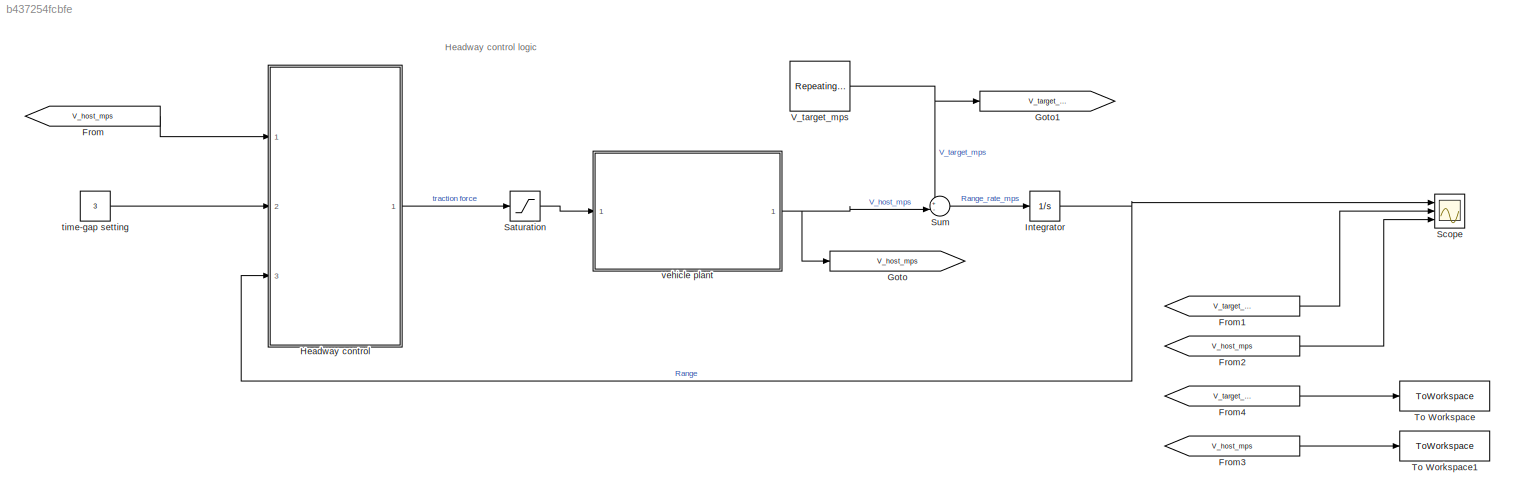
MODEL slx_b437254fcbfe
KIND model
CONFIG AbsTol = auto
CONFIG EnableMultiTasking = off
CONFIG FixedStep = auto
CONFIG MaxStep = auto
CONFIG MinStep = auto
CONFIG RelTol = 1e-3
CONFIG SampleTimeConstraint = Unconstrained
CONFIG SolverName = VariableStepAuto
CONFIG StartTime = 0.0
CONFIG StopTime = 500
BLOCK [From] From
  GotoTag = V_host_mps
BLOCK [From] From1
  GotoTag = V_target_mps
BLOCK [From] From2
  GotoTag = V_host_mps
BLOCK [From] From3
  GotoTag = V_host_mps
BLOCK [From] From4
  GotoTag = V_target_mps
BLOCK [Goto] Goto
  GotoTag = V_host_mps
BLOCK [Goto] Goto1
  GotoTag = V_target_mps
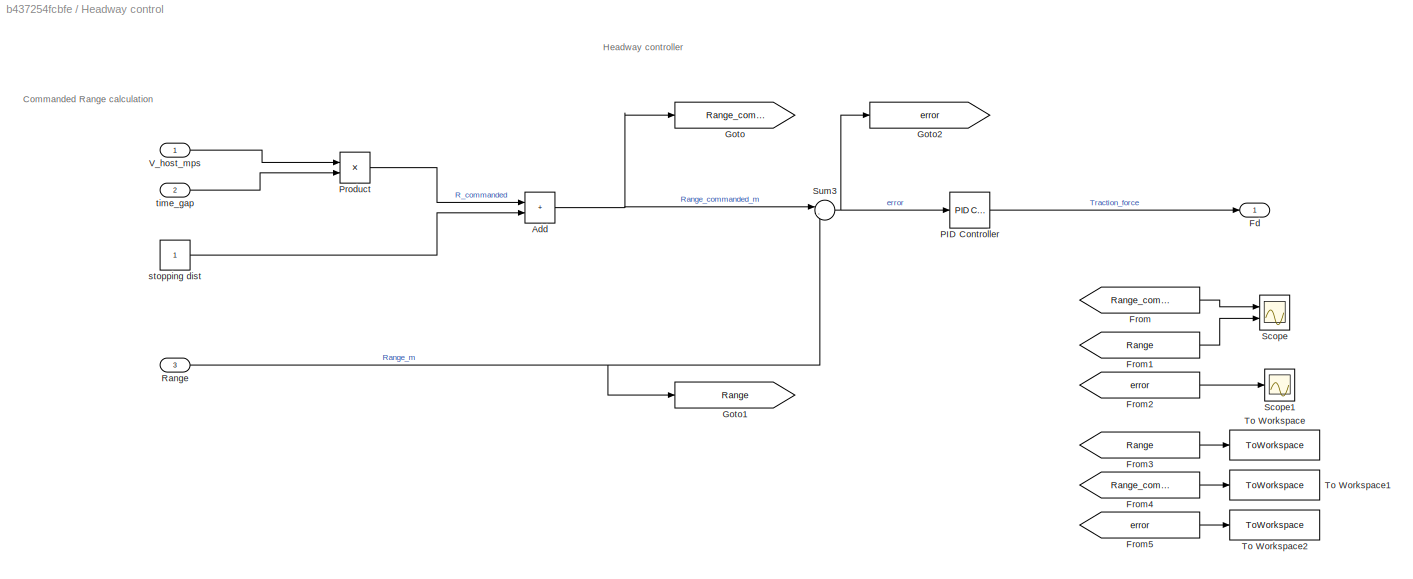
BLOCK [SubSystem] Headway control
  Ports = [3, 1]
  RequestExecContextInheritance = off
BLOCK [Sum] Headway control/Add
  IconShape = rectangular
  Ports = [2, 1]
BLOCK [Outport] Headway control/Fd
BLOCK [From] Headway control/From
  GotoTag = Range_commanded_m
BLOCK [From] Headway control/From1
  GotoTag = Range
BLOCK [From] Headway control/From2
  GotoTag = error
BLOCK [From] Headway control/From3
  GotoTag = Range
BLOCK [From] Headway control/From4
  GotoTag = Range_commanded_m
BLOCK [From] Headway control/From5
  GotoTag = error
BLOCK [Goto] Headway control/Goto
  GotoTag = Range_commanded_m
BLOCK [Goto] Headway control/Goto1
  GotoTag = Range
BLOCK [Goto] Headway control/Goto2
  GotoTag = error
BLOCK [Reference] Headway control/PID Controller  REF=pid_lib/PID Controller
  Ports = [1, 1]
  SourceBlock = pid_lib/PID Controller
  SourceProductBaseCode = SL
  SourceType = PID 1dof
BLOCK [Product] Headway control/Product
  Ports = [2, 1]
BLOCK [Inport] Headway control/Range
  Port = 3
BLOCK [Scope] Headway control/Scope
  Floating = off
  NumInputPorts = 2
  Ports = [2]
  ScopeSpecificationString = Simulink.scopes.TimeScopeBlockCfg('CurrentConfiguration', extmgr.ConfigurationSet(extmgr.Configuration('Core','General UI',true),extmgr.Configuration('Core','Source UI',true),extmgr.Configuration('Sources','WiredSimulink',true,'DataLoggingVariableName','ScopeData1'),extmgr.Configuration('Visuals','Time Domain',true,'SerializedDisplays',{struct('MinYLimReal','-13.22958','MaxYLimReal','119.06619','Y...<+1452ch>
BLOCK [Scope] Headway control/Scope1
  Floating = off
  NumInputPorts = 1
  Ports = [1]
  ScopeSpecificationString = Simulink.scopes.TimeScopeBlockCfg('CurrentConfiguration', extmgr.ConfigurationSet(extmgr.Configuration('Core','General UI',true),extmgr.Configuration('Core','Source UI',true),extmgr.Configuration('Sources','WiredSimulink',true,'DataLoggingVariableName','ScopeData1'),extmgr.Configuration('Visuals','Time Domain',true,'SerializedDisplays',{struct('MinYLimReal','-87.41267','MaxYLimReal','26.71407','YL...<+1403ch>
BLOCK [Sum] Headway control/Sum3
  Inputs = |-+
  Ports = [2, 1]
BLOCK [ToWorkspace] Headway control/To Workspace
  FixptAsFi = on
  MaxDataPoints = inf
  Ports = [1]
  SampleTime = -1
  VariableName = Range
BLOCK [ToWorkspace] Headway control/To Workspace1
  FixptAsFi = on
  MaxDataPoints = inf
  Ports = [1]
  SampleTime = -1
  VariableName = Range_commanded
BLOCK [ToWorkspace] Headway control/To Workspace2
  FixptAsFi = on
  MaxDataPoints = inf
  Ports = [1]
  SampleTime = -1
  VariableName = Headway_error
BLOCK [Inport] Headway control/V_host_mps
BLOCK [Constant] Headway control/stopping dist
BLOCK [Inport] Headway control/time_gap
  Port = 2
BLOCK [Integrator] Integrator
  Ports = [1, 1]
BLOCK [Saturate] Saturation
  LowerLimit = -1000
  UpperLimit = 1000
BLOCK [Scope] Scope
  Floating = off
  NumInputPorts = 3
  Ports = [3]
  ScopeSpecificationString = Simulink.scopes.TimeScopeBlockCfg('CurrentConfiguration', extmgr.ConfigurationSet(extmgr.Configuration('Core','General UI',true),extmgr.Configuration('Core','Source UI',true),extmgr.Configuration('Sources','WiredSimulink',true),extmgr.Configuration('Visuals','Time Domain',true,'SerializedDisplays',{struct('MinYLimReal','-13.22958','MaxYLimReal','119.06619','YLabelReal','','MinYLimMag','0.00000','M...<+2665ch>
BLOCK [Sum] Sum
  Inputs = +-|
  Ports = [2, 1]
BLOCK [ToWorkspace] To Workspace
  FixptAsFi = on
  MaxDataPoints = inf
  Ports = [1]
  SampleTime = -1
  VariableName = V_target_mps
BLOCK [ToWorkspace] To Workspace1
  FixptAsFi = on
  MaxDataPoints = inf
  Ports = [1]
  SampleTime = -1
  VariableName = V_host_mps
BLOCK [Reference] V_target_mps   REF=simulink/Sources/Repeating
Sequence
  Ports = [0, 1]
  SourceBlock = simulink/Sources/Repeating\nSequence
  SourceProductBaseCode = SL
  SourceType = Repeating table
BLOCK [Constant] time-gap setting
  Value = 3
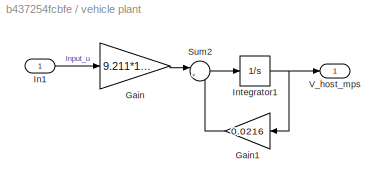
BLOCK [SubSystem] vehicle plant
  Ports = [1, 1]
  RequestExecContextInheritance = off
BLOCK [Gain] vehicle plant/Gain
  Gain = 9.211*1e-4
BLOCK [Gain] vehicle plant/Gain1
  Gain = 0.0216
BLOCK [Inport] vehicle plant/In1
BLOCK [Integrator] vehicle plant/Integrator1
  InitialCondition = 25
  Ports = [1, 1]
BLOCK [Sum] vehicle plant/Sum2
  Inputs = |+-
  Ports = [2, 1]
BLOCK [Outport] vehicle plant/V_host_mps
  VectorParamsAs1DForOutWhenUnconnected = off
ANNOTATION (root): Headway control logic
ANNOTATION Headway control: Headway controller
ANNOTATION Headway control: Commanded Range calculation
LINE From1:1 -> Scope:2
LINE From2:1 -> Scope:3
LINE From3:1 -> To Workspace1:1
LINE From4:1 -> To Workspace:1
LINE From:1 -> Headway control:1
NET Headway control/Add:1 -> Headway control/Goto:1, Headway control/Sum3:1
LINE Headway control/From1:1 -> Headway control/Scope:2
LINE Headway control/From2:1 -> Headway control/Scope1:1
LINE Headway control/From3:1 -> Headway control/To Workspace:1
LINE Headway control/From4:1 -> Headway control/To Workspace1:1
LINE Headway control/From5:1 -> Headway control/To Workspace2:1
LINE Headway control/From:1 -> Headway control/Scope:1
LINE Headway control/PID Controller:1 -> Headway control/Fd:1
LINE Headway control/Product:1 -> Headway control/Add:1
NET Headway control/Range:1 -> Headway control/Goto1:1, Headway control/Sum3:2
NET Headway control/Sum3:1 -> Headway control/Goto2:1, Headway control/PID Controller:1
LINE Headway control/V_host_mps:1 -> Headway control/Product:1
LINE Headway control/stopping dist:1 -> Headway control/Add:2
LINE Headway control/time_gap:1 -> Headway control/Product:2
LINE Headway control:1 -> Saturation:1
NET Integrator:1 -> Headway control:3, Scope:1
LINE Saturation:1 -> vehicle plant:1
LINE Sum:1 -> Integrator:1
NET V_target_mps :1 -> Goto1:1, Sum:1
LINE time-gap setting:1 -> Headway control:2
LINE vehicle plant/Gain1:1 -> vehicle plant/Sum2:2
LINE vehicle plant/Gain:1 -> vehicle plant/Sum2:1
LINE vehicle plant/In1:1 -> vehicle plant/Gain:1
NET vehicle plant/Integrator1:1 -> vehicle plant/Gain1:1, vehicle plant/V_host_mps:1
LINE vehicle plant/Sum2:1 -> vehicle plant/Integrator1:1
NET vehicle plant:1 -> Goto:1, Sum:2
note: NET lines group one-source signal fan-out (src -> all destinations, sorted); 1:1 wires keep LINE
